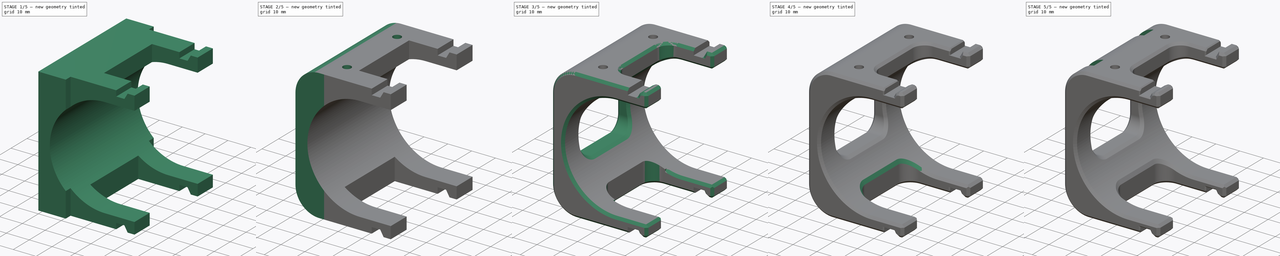
[diagram: build sequence overview — one tinted view per stage of 5, left to right]
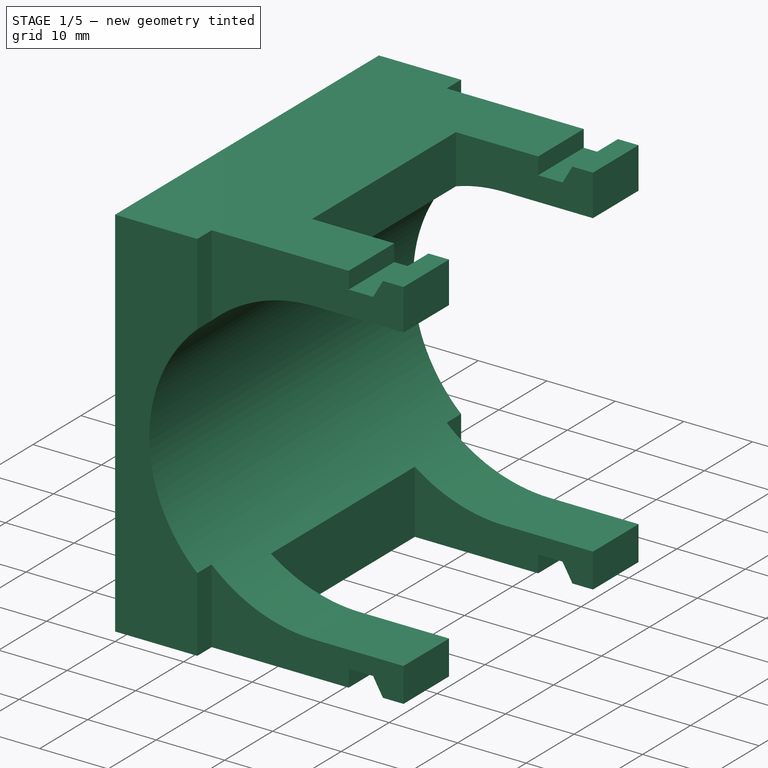
[diagram: stage 1 of 5 — iso view after this stage's code; geometry added in this stage tinted green]
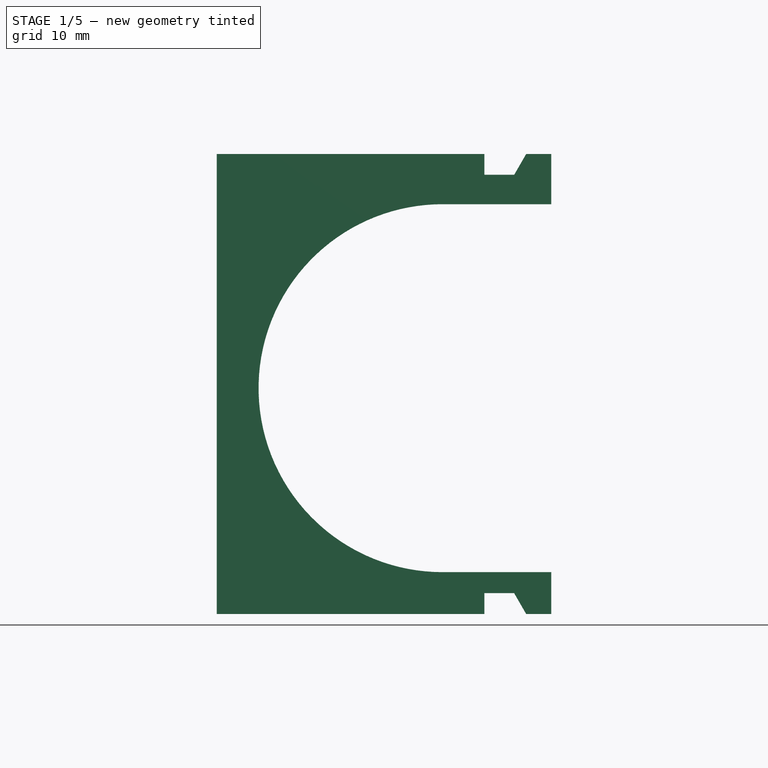
[diagram: stage 1 of 5 — front view after this stage's code; geometry added in this stage tinted green]
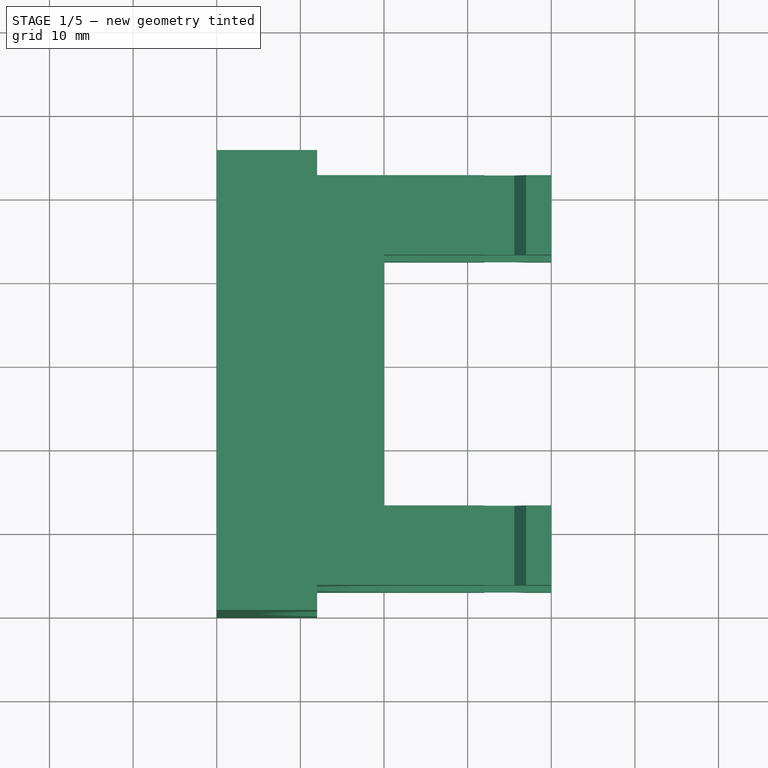
[diagram: stage 1 of 5 — top view after this stage's code; geometry added in this stage tinted green]
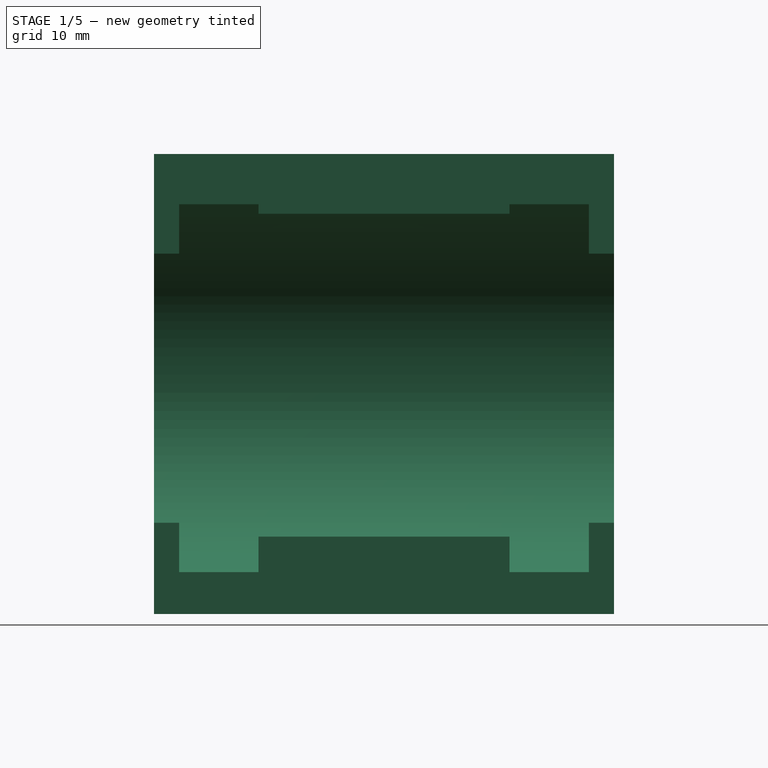
[diagram: stage 1 of 5 — right view after this stage's code; geometry added in this stage tinted green]
FCSTD DOCUMENT  (FreeCAD 0.20R29603 (Git))
Label: pump-mount
License: All rights reserved
LicenseURL: http://en.wikipedia.org/wiki/All_rights_reserved
objects: Sketcher::SketchObject×12, PartDesign::Pocket×8, PartDesign::Chamfer×6, PartDesign::Pad×3, PartDesign::Plane×3, PartDesign::Fillet×3, PartDesign::Hole×1, PartDesign::Body×1
note: 58 computed .brp shape members not serialized (recipe doc carries the construction recipe); baked Part::Feature solids carry a one-line shape summary decoded from their .brp

FEATURE [Sketcher::SketchObject] Sketch
  FullyConstrained = true
  MapMode = 5
  Support = -> [XY_Plane]
  sketch-geometry (4):
    g0: LineSegment StartX=0 StartY=55 StartZ=0 EndX=40 EndY=55 EndZ=0
    g1: LineSegment StartX=40 StartY=55 StartZ=0 EndX=40 EndY=0 EndZ=0
    g2: LineSegment StartX=40 StartY=0 StartZ=0 EndX=0 EndY=0 EndZ=0
    g3: LineSegment StartX=0 StartY=0 StartZ=0 EndX=0 EndY=55 EndZ=0
  constraints (11):
    c: Coincident(g0,g1)
    c: Coincident(g1,g2)
    c: Coincident(g2,g3)
    c: Coincident(g3,g0)
    c: Horizontal(g0)
    c: Horizontal(g2)
    c: Vertical(g1)
    c: Vertical(g3)
    c: DistanceX(g0,g0) = 40
    c: DistanceY(g1,g1) = 55
    c: Coincident(g2,g-1)
FEATURE [PartDesign::Pad] Pad
  Direction = (1,1,1)
  Length = 55
  Length2 = 100
  Profile = -> Sketch
  Type = 0
FEATURE [Sketcher::SketchObject] Sketch001
  FullyConstrained = true
  MapMode = 5
  Placement = pos=(0,0,0) rot=(1,0,0;1.5708rad)
  Support = -> [XZ_Plane]
  sketch-geometry (12):
    g0: LineSegment StartX=27 StartY=49 StartZ=0 EndX=45 EndY=49 EndZ=0
    g1: LineSegment StartX=45 StartY=49 StartZ=0 EndX=45 EndY=5 EndZ=0
    g2: LineSegment StartX=45 StartY=5 StartZ=0 EndX=27 EndY=5 EndZ=0
    g3: ArcOfCircle CenterX=27 CenterY=27 CenterZ=0 NormalX=0 NormalY=0 NormalZ=1 AngleXU=0 Radius=22 StartAngle=1.5708 EndAngle=4.71239
    g4: LineSegment StartX=32 StartY=55 StartZ=0 EndX=37 EndY=55 EndZ=0
    g5: LineSegment StartX=37 StartY=55 StartZ=0 EndX=35.57 EndY=52.5232 EndZ=0
    g6: LineSegment StartX=35.57 StartY=52.5232 StartZ=0 EndX=32 EndY=52.5232 EndZ=0
    g7: LineSegment StartX=32 StartY=52.5232 StartZ=0 EndX=32 EndY=55 EndZ=0
    g8: LineSegment StartX=32 StartY=2.5 StartZ=0 EndX=35.5566 EndY=2.5 EndZ=0
    g9: LineSegment StartX=35.5566 StartY=2.5 StartZ=0 EndX=37 EndY=0 EndZ=0
    g10: LineSegment StartX=37 StartY=0 StartZ=0 EndX=32 EndY=0 EndZ=0
    g11: LineSegment StartX=32 StartY=0 StartZ=0 EndX=32 EndY=2.5 EndZ=0
  constraints (37):
    c: Horizontal(g0)
    c: Coincident(g1,g0)
    c: Vertical(g1)
    c: Coincident(g2,g1)
    c: Horizontal(g2)
    c: Coincident(g3,g0)
    c: Coincident(g3,g2)
    c: Vertical(g0,g2)
    c: Vertical(g3,g0)
    c: DistanceY(g1,g1) = 44
    c: DistanceY(g-1,g1) = 5
    c: DistanceX(g-1,g1) = 45
    c: DistanceX(g0,g0) = 18
    c: Coincident(g4,g5)
    c: Coincident(g5,g6)
    c: Coincident(g6,g7)
    c: Coincident(g7,g4)
    c: Horizontal(g4)
    c: Horizontal(g6)
    c: Vertical(g7)
    c: Coincident(g8,g9)
    c: Coincident(g9,g10)
    c: Coincident(g10,g11)
    c: Coincident(g11,g8)
    c: Horizontal(g8)
    c: Horizontal(g10)
    c: Vertical(g11)
    c: Vertical(g6,g8)
    c: Equal(g4,g10)
    c: DistanceX(g10,g10) = 5
    c: Horizontal(g10,g-1)
    c: DistanceY(g9,g9) = 2.5
    c: DistanceY(g-1,g4) = 55
    c: Angle(g4,g5) = 1.0472
    c: Angle(g9,g10) = 1.0472
    c: DistanceX(g6,g6) = 3.57
    c: DistanceX(g-1,g10) = 32
FEATURE [PartDesign::Pocket] Pocket
  BaseFeature = -> Pad
  Direction = (1,1,1)
  Length = 5
  Length2 = 100
  Profile = -> Sketch001
  Type = 1
FEATURE [Sketcher::SketchObject] Sketch002
  FullyConstrained = true
  MapMode = 5
  Support = -> [XY_Plane]
  sketch-geometry (13):
    g0: LineSegment StartX=49 StartY=55 StartZ=0 EndX=14 EndY=55 EndZ=0
    g1: LineSegment StartX=14 StartY=55 StartZ=0 EndX=14 EndY=52 EndZ=0
    g2: LineSegment StartX=14 StartY=52 StartZ=0 EndX=49 EndY=52 EndZ=0
    g3: LineSegment StartX=49 StartY=52 StartZ=0 EndX=49 EndY=55 EndZ=0
    g4: LineSegment StartX=49 StartY=42.5 StartZ=0 EndX=14 EndY=42.5 EndZ=0
    g5: LineSegment StartX=14 StartY=42.5 StartZ=0 EndX=14 EndY=12.5 EndZ=0
    g6: LineSegment StartX=14 StartY=12.5 StartZ=0 EndX=49 EndY=12.5 EndZ=0
    g7: LineSegment StartX=49 StartY=12.5 StartZ=0 EndX=49 EndY=42.5 EndZ=0
    g8: LineSegment StartX=49 StartY=3 StartZ=0 EndX=14 EndY=3 EndZ=0
    g9: LineSegment StartX=14 StartY=3 StartZ=0 EndX=14 EndY=0 EndZ=0
    g10: LineSegment StartX=14 StartY=0 StartZ=0 EndX=49 EndY=0 EndZ=0
    g11: LineSegment StartX=49 StartY=0 StartZ=0 EndX=49 EndY=3 EndZ=0
    g12: LineSegment StartX=0 StartY=27.5 StartZ=0 EndX=75 EndY=27.5 EndZ=0
  constraints (39):
    c: Coincident(g0,g1)
    c: Coincident(g1,g2)
    c: Coincident(g2,g3)
    c: Coincident(g3,g0)
    c: Horizontal(g0)
    c: Horizontal(g2)
    c: Vertical(g1)
    c: Vertical(g3)
    c: Coincident(g4,g5)
    c: Coincident(g5,g6)
    c: Coincident(g6,g7)
    c: Coincident(g7,g4)
    c: Horizontal(g4)
    c: Vertical(g5)
    c: Vertical(g7)
    c: Coincident(g8,g9)
    c: Coincident(g9,g10)
    c: Coincident(g10,g11)
    c: Coincident(g11,g8)
    c: Horizontal(g8)
    c: Horizontal(g10)
    c: Vertical(g9)
    c: Vertical(g11)
    c: Vertical(g9,g5)
    c: Vertical(g5,g1)
    c: Vertical(g8,g6)
    c: Vertical(g6,g2)
    c: Equal(g11,g3)
    c: Equal(g8,g6)
    c: DistanceY(g11,g11) = 3
    c: DistanceY(g-1,g0) = 55
    c: DistanceY(g9,g-1) = 0
    c: DistanceX(g6,g6) = 35
    c: PointOnObject(g12,g-2)
    c: DistanceY(g-1,g12) = 27.5
    c: DistanceX(g12,g12) = 75
    c: Symmetric(g5,g4,g12)
    c: DistanceY(g7,g7) = 30
    c: DistanceX(g-1,g8) = 14
FEATURE [PartDesign::Pocket] Pocket001
  BaseFeature = -> Pocket
  Direction = (1,1,1)
  Length = 25
  Length2 = 100
  Profile = -> Sketch002
  Reversed = true
  Type = 0
FEATURE [Sketcher::SketchObject] Sketch003
  FullyConstrained = true
  MapMode = 5
  Support = -> [XY_Plane]
  sketch-geometry (13):
    g0: LineSegment StartX=55 StartY=55 StartZ=0 EndX=12 EndY=55 EndZ=0
    g1: LineSegment StartX=12 StartY=55 StartZ=0 EndX=12 EndY=52 EndZ=0
    g2: LineSegment StartX=12 StartY=52 StartZ=0 EndX=55 EndY=52 EndZ=0
    g3: LineSegment StartX=55 StartY=52 StartZ=0 EndX=55 EndY=55 EndZ=0
    g4: LineSegment StartX=55 StartY=42.5 StartZ=0 EndX=20 EndY=42.5 EndZ=0
    g5: LineSegment StartX=20 StartY=42.5 StartZ=0 EndX=20 EndY=12.5 EndZ=0
    g6: LineSegment StartX=20 StartY=12.5 StartZ=0 EndX=55 EndY=12.5 EndZ=0
    g7: LineSegment StartX=55 StartY=12.5 StartZ=0 EndX=55 EndY=42.5 EndZ=0
    g8: LineSegment StartX=55 StartY=3 StartZ=0 EndX=12 EndY=3 EndZ=0
    g9: LineSegment StartX=12 StartY=3 StartZ=0 EndX=12 EndY=0 EndZ=0
    g10: LineSegment StartX=12 StartY=0 StartZ=0 EndX=55 EndY=0 EndZ=0
    g11: LineSegment StartX=55 StartY=0 StartZ=0 EndX=55 EndY=3 EndZ=0
    g12: LineSegment StartX=0 StartY=27.5 StartZ=0 EndX=100 EndY=27.5 EndZ=0
  constraints (39):
    c: Coincident(g0,g1)
    c: Coincident(g1,g2)
    c: Coincident(g2,g3)
    c: Coincident(g3,g0)
    c: Horizontal(g0)
    c: Horizontal(g2)
    c: Vertical(g1)
    c: Vertical(g3)
    c: Coincident(g4,g5)
    c: Coincident(g5,g6)
    c: Coincident(g6,g7)
    c: Coincident(g7,g4)
    c: Horizontal(g4)
    c: Vertical(g5)
    c: Vertical(g7)
    c: Coincident(g8,g9)
    c: Coincident(g9,g10)
    c: Coincident(g10,g11)
    c: Coincident(g11,g8)
    c: Horizontal(g8)
    c: Horizontal(g10)
    c: Vertical(g9)
    c: Vertical(g11)
    c: Vertical(g8,g6)
    c: Vertical(g6,g2)
    c: DistanceY(g11,g11) = 3
    c: DistanceY(g-1,g0) = 55
    c: DistanceY(g9,g-1) = 0
    c: DistanceX(g6,g6) = 35
    c: PointOnObject(g12,g-2)
    c: DistanceY(g-1,g12) = 27.5
    c: DistanceX(g12,g12) = 100
    c: Symmetric(g5,g4,g12)
    c: DistanceY(g7,g7) = 30
    c: DistanceX(g-1,g5) = 20
    c: DistanceX(g-1,g0) = 12
    c: Vertical(g9,g1)
    c: Equal(g11,g3)
    c: Equal(g7,g5)
FEATURE [PartDesign::Pocket] Pocket002
  BaseFeature = -> Pocket001
  Direction = (1,1,1)
  Length = 5
  Length2 = 100
  Profile = -> Sketch003
  Reversed = true
  Type = 1
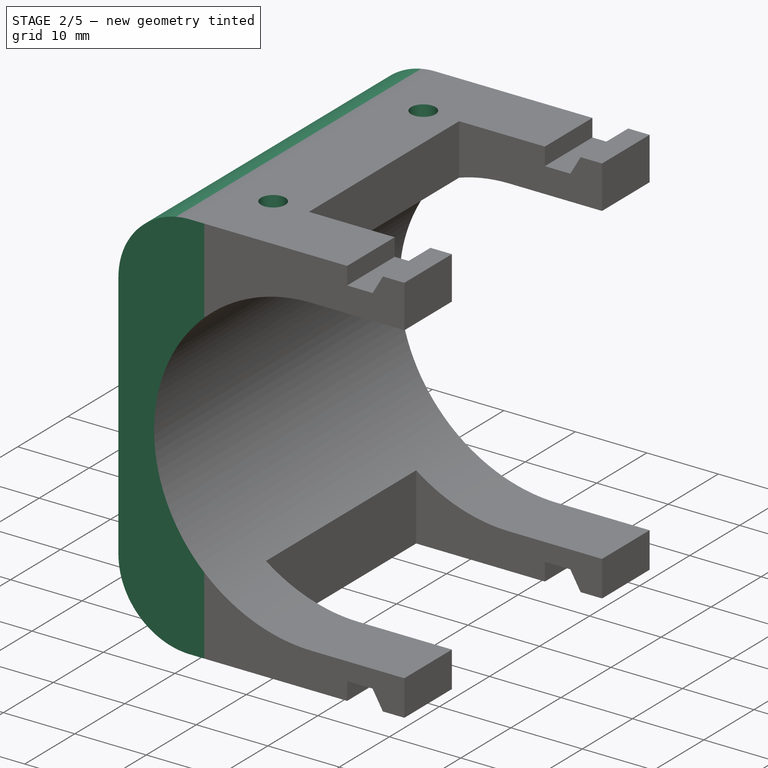
[diagram: stage 2 of 5 — iso view after this stage's code; geometry added in this stage tinted green]
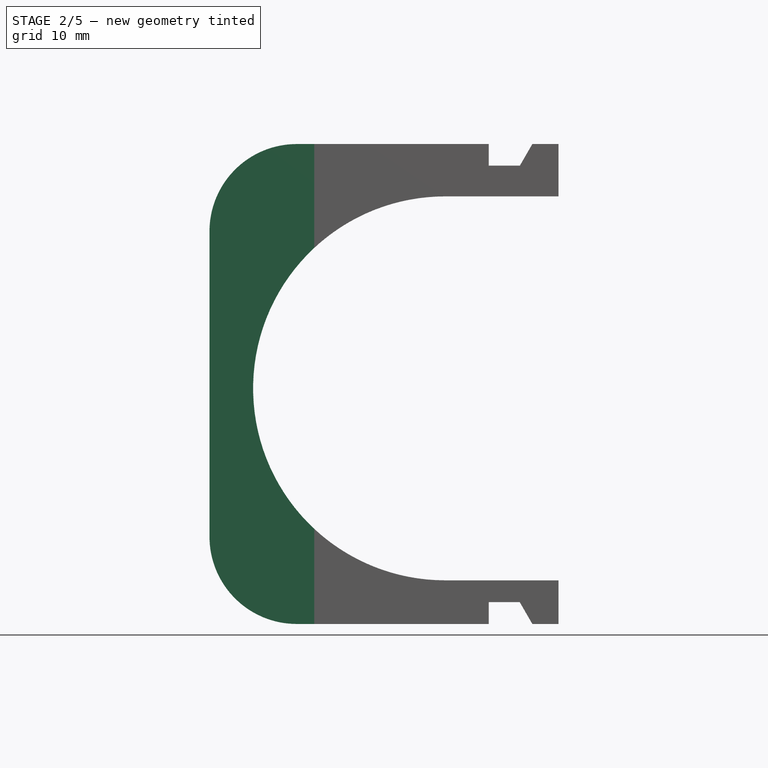
[diagram: stage 2 of 5 — front view after this stage's code; geometry added in this stage tinted green]
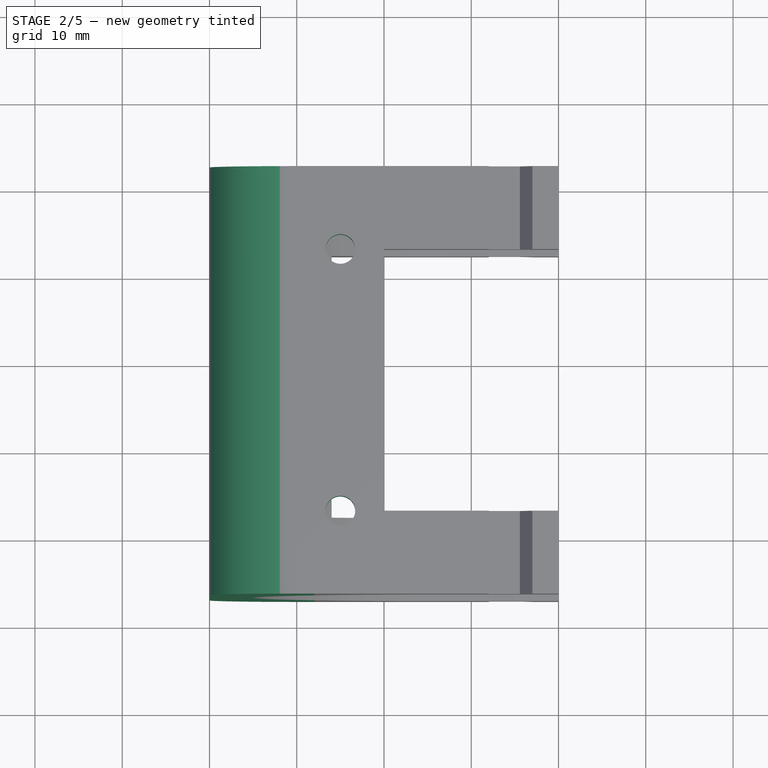
[diagram: stage 2 of 5 — top view after this stage's code; geometry added in this stage tinted green]
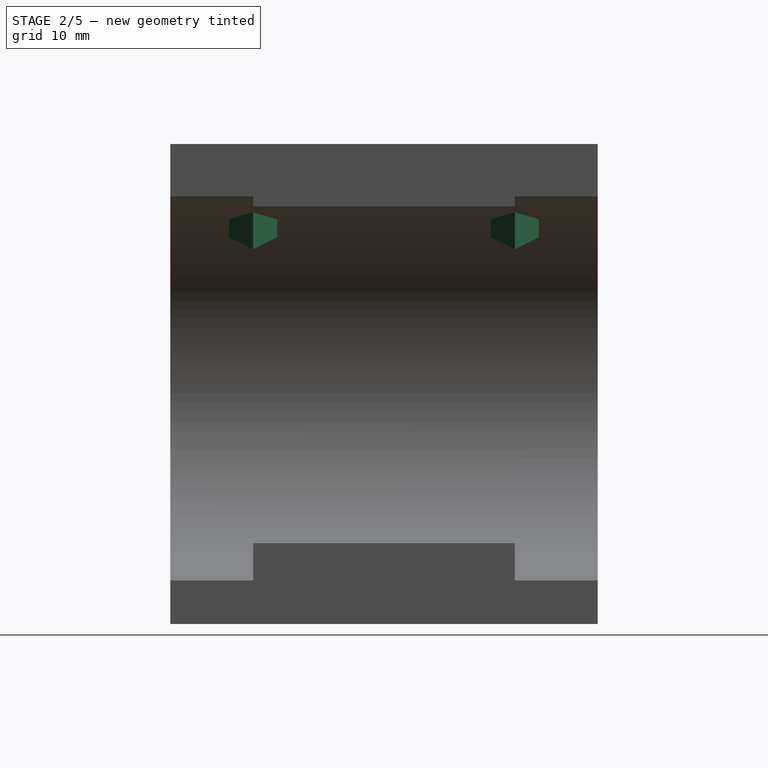
[diagram: stage 2 of 5 — right view after this stage's code; geometry added in this stage tinted green]
FEATURE [PartDesign::Plane] DatumPlane
  Length = 79.1492
  MapMode = 5
  Placement = pos=(0,0,55) rot=(0,0,1;0rad)
  ResizeMode = 0
  Support = -> [Pocket001]
  Width = 91.1492
FEATURE [Sketcher::SketchObject] Sketch004
  FullyConstrained = true
  MapMode = 5
  Placement = pos=(0,0,55) rot=(0,0,1;0rad)
  Support = -> [DatumPlane]
  sketch-geometry (2):
    g0: Circle CenterX=15 CenterY=42.5 CenterZ=0 NormalX=0 NormalY=0 NormalZ=1 AngleXU=0 Radius=1.75
    g1: Circle CenterX=15 CenterY=12.5 CenterZ=0 NormalX=0 NormalY=0 NormalZ=1 AngleXU=0 Radius=1.75
  constraints (6):
    c: Vertical(g0,g1)
    c: Diameter(g1) = 3.5
    c: Equal(g1,g0)
    c: DistanceY(g1,g0) = 30
    c: DistanceY(g-1,g1) = 12.5
    c: DistanceX(g-1,g1) = 15
FEATURE [PartDesign::Hole] Hole
  BaseFeature = -> Pocket002
  CustomThreadClearance = 0
  Depth = 25
  DepthType = 0
  Diameter = 3.4
  DrillForDepth = false
  DrillPoint = 1
  DrillPointAngle = 118
  HoleCutCountersinkAngle = 90
  HoleCutCustomValues = false
  HoleCutDepth = 0
  HoleCutDiameter = 6.1
  HoleCutType = 0
  ModelThread = false
  Profile = -> Sketch004
  Tapered = false
  TaperedAngle = 90
  ThreadClass = 0
  ThreadDepth = 23.5
  ThreadDepthType = 0
  ThreadDirection = 0
  ThreadFit = 0
  ThreadSize = 9
  ThreadType = 1
  Threaded = false
  UseCustomThreadClearance = false
FEATURE [Sketcher::SketchObject] Sketch005  label="M3NutHoles"
  AttachmentOffset = pos=(0,0,-5) rot=(0,0,1;0rad)
  FullyConstrained = true
  MapMode = 5
  Placement = pos=(0,0,50) rot=(0,0,1;0rad)
  Support = -> [DatumPlane]
  sketch-geometry (14):
    g0: LineSegment StartX=16.5877 StartY=9.75 StartZ=0 EndX=18.1754 EndY=12.5 EndZ=0
    g1: LineSegment StartX=18.1754 StartY=12.5 StartZ=0 EndX=16.5877 EndY=15.25 EndZ=0
    g2: LineSegment StartX=16.5877 StartY=15.25 StartZ=0 EndX=13.4123 EndY=15.25 EndZ=0
    g3: LineSegment StartX=13.4123 StartY=15.25 StartZ=0 EndX=11.8246 EndY=12.5 EndZ=0
    g4: LineSegment StartX=11.8246 StartY=12.5 StartZ=0 EndX=13.4123 EndY=9.75 EndZ=0
    g5: LineSegment StartX=13.4123 StartY=9.75 StartZ=0 EndX=16.5877 EndY=9.75 EndZ=0
    g6: Circle CenterX=15 CenterY=12.5 CenterZ=0 NormalX=0 NormalY=0 NormalZ=1 AngleXU=0 Radius=3.17543
    g7: LineSegment StartX=16.5877 StartY=39.75 StartZ=0 EndX=18.1754 EndY=42.5 EndZ=0
    g8: LineSegment StartX=18.1754 StartY=42.5 StartZ=0 EndX=16.5877 EndY=45.25 EndZ=0
    g9: LineSegment StartX=16.5877 StartY=45.25 StartZ=0 EndX=13.4123 EndY=45.25 EndZ=0
    g10: LineSegment StartX=13.4123 StartY=45.25 StartZ=0 EndX=11.8246 EndY=42.5 EndZ=0
    g11: LineSegment StartX=11.8246 StartY=42.5 StartZ=0 EndX=13.4123 EndY=39.75 EndZ=0
    g12: LineSegment StartX=13.4123 StartY=39.75 StartZ=0 EndX=16.5877 EndY=39.75 EndZ=0
    g13: Circle CenterX=15 CenterY=42.5 CenterZ=0 NormalX=0 NormalY=0 NormalZ=1 AngleXU=0 Radius=3.17543
  constraints (34):
    c: Coincident(g0,g1)
    c: Coincident(g1,g2)
    c: Coincident(g2,g3)
    c: Coincident(g3,g4)
    c: Coincident(g4,g5)
    c: Coincident(g5,g0)
    c: Equal(g0, g1-g5) x5
    c: PointOnObject(g0,g6)
    c: PointOnObject(g1,g6)
    c: PointOnObject(g2,g6)
    c: PointOnObject(g3,g6)
    c: PointOnObject(g4,g6)
    c: PointOnObject(g5,g6)
    c: Coincident(g7,g8)
    c: Coincident(g8,g9)
    c: Coincident(g9,g10)
    c: Coincident(g10,g11)
    c: Coincident(g11,g12)
    c: Coincident(g12,g7)
    c: Equal(g7, g8-g12) x5
    c: PointOnObject(g7,g13)
    c: PointOnObject(g8,g13)
    c: PointOnObject(g9,g13)
    c: PointOnObject(g10,g13)
    c: PointOnObject(g11,g13)
    c: PointOnObject(g12,g13)
    c: Vertical(g6,g13)
    c: DistanceX(g-1,g6) = 15
    c: DistanceY(g6,g13) = 30
    c: Horizontal(g2,g1)
    c: Horizontal(g9,g8)
    c: DistanceY(g11,g9) = 5.5
    c: DistanceY(g4,g2) = 5.5
    c: DistanceY(g-1,g6) = 12.5
FEATURE [PartDesign::Pocket] Pocket003
  BaseFeature = -> Hole
  Direction = (1,1,1)
  Length = 15
  Length2 = 100
  Profile = -> Sketch005
  Type = 0
FEATURE [PartDesign::Plane] DatumPlane001  label="PrintPlane"
  Length = 92.6971
  MapMode = 5
  Placement = pos=(0,0,0) rot=(0.57735,-0.57735,-0.57735;2.0944rad)
  ResizeMode = 0
  Support = -> [Pocket003]
  Width = 95.6971
FEATURE [Sketcher::SketchObject] Sketch007  label="M3NutHolesInBack"
  AttachmentOffset = pos=(0,0,7) rot=(0,0,1;0rad)
  FullyConstrained = false
  MapMode = 5
  Placement = pos=(7,-1.6e-15,1.6e-15) rot=(0.57735,0.57735,0.57735;2.0944rad)
  Support = -> [YZ_Plane]
  sketch-geometry (15):
    g0: LineSegment StartX=14.0877 StartY=22.25 StartZ=0 EndX=15.6754 EndY=25 EndZ=0
    g1: LineSegment StartX=15.6754 StartY=25 StartZ=0 EndX=14.0877 EndY=27.75 EndZ=0
    g2: LineSegment StartX=14.0877 StartY=27.75 StartZ=0 EndX=10.9123 EndY=27.75 EndZ=0
    g3: LineSegment StartX=10.9123 StartY=27.75 StartZ=0 EndX=9.32457 EndY=25 EndZ=0
    g4: LineSegment StartX=9.32457 StartY=25 StartZ=0 EndX=10.9123 EndY=22.25 EndZ=0
    g5: LineSegment StartX=10.9123 StartY=22.25 StartZ=0 EndX=14.0877 EndY=22.25 EndZ=0
    g6: Circle CenterX=12.5 CenterY=25 CenterZ=0 NormalX=0 NormalY=0 NormalZ=1 AngleXU=0 Radius=3.17543
    g7: LineSegment StartX=44.0877 StartY=22.25 StartZ=0 EndX=45.6754 EndY=25 EndZ=0
    g8: LineSegment StartX=45.6754 StartY=25 StartZ=0 EndX=44.0877 EndY=27.75 EndZ=0
    g9: LineSegment StartX=44.0877 StartY=27.75 StartZ=0 EndX=40.9123 EndY=27.75 EndZ=0
    g10: LineSegment StartX=40.9123 StartY=27.75 StartZ=0 EndX=39.3246 EndY=25 EndZ=0
    g11: LineSegment StartX=39.3246 StartY=25 StartZ=0 EndX=40.9123 EndY=22.25 EndZ=0
    g12: LineSegment StartX=40.9123 StartY=22.25 StartZ=0 EndX=44.0877 EndY=22.25 EndZ=0
    g13: Circle CenterX=42.5 CenterY=25 CenterZ=0 NormalX=0 NormalY=0 NormalZ=1 AngleXU=0 Radius=3.17543
    g14: LineSegment StartX=27.5 StartY=0 StartZ=0 EndX=27.5 EndY=36.5804 EndZ=0
  constraints (36):
    c: Coincident(g0,g1)
    c: Coincident(g1,g2)
    c: Coincident(g2,g3)
    c: Coincident(g3,g4)
    c: Coincident(g4,g5)
    c: Coincident(g5,g0)
    c: Equal(g0, g1-g5) x5
    c: PointOnObject(g0,g6)
    c: PointOnObject(g1,g6)
    c: PointOnObject(g2,g6)
    c: PointOnObject(g3,g6)
    c: PointOnObject(g4,g6)
    c: PointOnObject(g5,g6)
    c: Coincident(g7,g8)
    c: Coincident(g8,g9)
    c: Coincident(g9,g10)
    c: Coincident(g10,g11)
    c: Coincident(g11,g12)
    c: Coincident(g12,g7)
    c: Equal(g7, g8-g12) x5
    c: PointOnObject(g7,g13)
    c: PointOnObject(g8,g13)
    c: PointOnObject(g9,g13)
    c: PointOnObject(g10,g13)
    c: PointOnObject(g11,g13)
    c: PointOnObject(g12,g13)
    c: Horizontal(g2)
    c: Horizontal(g9)
    c: Distance(g3,g1) = 5.5
    c: Equal(g6,g13)
    c: DistanceX(g6,g13) = 30
    c: PointOnObject(g14,g-1)
    c: Vertical(g14)
    c: DistanceX(g-1,g14) = 27.5
    c: Symmetric(g6,g13,g14)
    c: DistanceY(g-1,g6) = 25
FEATURE [Sketcher::SketchObject] Sketch008
  FullyConstrained = false
  MapMode = 5
  Placement = pos=(0,0,0) rot=(0.57735,-0.57735,-0.57735;2.0944rad)
  Support = -> [DatumPlane001]
  sketch-geometry (14):
    g0: LineSegment StartX=-12.5 StartY=0 StartZ=0 EndX=-42.5 EndY=0 EndZ=0
    g1: LineSegment StartX=-42.5 StartY=0 StartZ=0 EndX=-42.5 EndY=40 EndZ=0
    g2: LineSegment StartX=-42.5 StartY=40 StartZ=0 EndX=-12.5 EndY=40 EndZ=0
    g3: LineSegment StartX=-12.5 StartY=40 StartZ=0 EndX=-12.5 EndY=0 EndZ=0
    g4: GeomPoint X=-27.5 Y=-5.62242 Z=0
    g5: LineSegment StartX=-27.5 StartY=-5.62242 StartZ=0 EndX=-27.5 EndY=40 EndZ=0
    g6: LineSegment StartX=5.16772 StartY=-7.03151 StartZ=0 EndX=-3 EndY=-7.03151 EndZ=0
    g7: LineSegment StartX=-3 StartY=-7.03151 StartZ=0 EndX=-3 EndY=62.771 EndZ=0
    g8: LineSegment StartX=-3 StartY=62.771 StartZ=0 EndX=5.16772 EndY=62.771 EndZ=0
    g9: LineSegment StartX=5.16772 StartY=62.771 StartZ=0 EndX=5.16772 EndY=-7.03151 EndZ=0
    g10: LineSegment StartX=-58.7715 StartY=66.9886 StartZ=0 EndX=-52 EndY=66.9886 EndZ=0
    g11: LineSegment StartX=-52 StartY=66.9886 StartZ=0 EndX=-52 EndY=-6.60639 EndZ=0
    g12: LineSegment StartX=-52 StartY=-6.60639 StartZ=0 EndX=-58.7715 EndY=-6.60639 EndZ=0
    g13: LineSegment StartX=-58.7715 StartY=-6.60639 StartZ=0 EndX=-58.7715 EndY=66.9886 EndZ=0
  constraints (31):
    c: Coincident(g0,g1)
    c: Coincident(g1,g2)
    c: Coincident(g2,g3)
    c: Coincident(g3,g0)
    c: Horizontal(g0)
    c: Horizontal(g2)
    c: Vertical(g1)
    c: Vertical(g3)
    c: PointOnObject(g0,g-1)
    c: Vertical(g5)
    c: Symmetric(g2,g2,g5)
    c: Coincident(g4,g5)
    c: DistanceX(g2,g2) = 30
    c: DistanceY(g1,g1) = 40
    c: Coincident(g6,g7)
    c: Coincident(g7,g8)
    c: Coincident(g8,g9)
    c: Coincident(g9,g6)
    c: Horizontal(g6)
    c: Horizontal(g8)
    c: Vertical(g7)
    c: Vertical(g9)
    c: Coincident(g10,g11)
    c: Coincident(g11,g12)
    c: Coincident(g12,g13)
    c: Coincident(g13,g10)
    c: Horizontal(g10)
    c: Horizontal(g12)
    c: Vertical(g11)
    c: Vertical(g13)
    c: DistanceX(g4,g-1) = 27.5
FEATURE [PartDesign::Pocket] Pocket006
  BaseFeature = -> Pocket003
  Direction = (1,1,1)
  Length = 5
  Length2 = 100
  Profile = -> Sketch008
  Type = 1
FEATURE [PartDesign::Fillet] Fillet001
  Base = -> Pocket006 [Edge71,Edge16]
  BaseFeature = -> Pocket006
  Radius = 10
  SupportTransform = false
  UseAllEdges = false
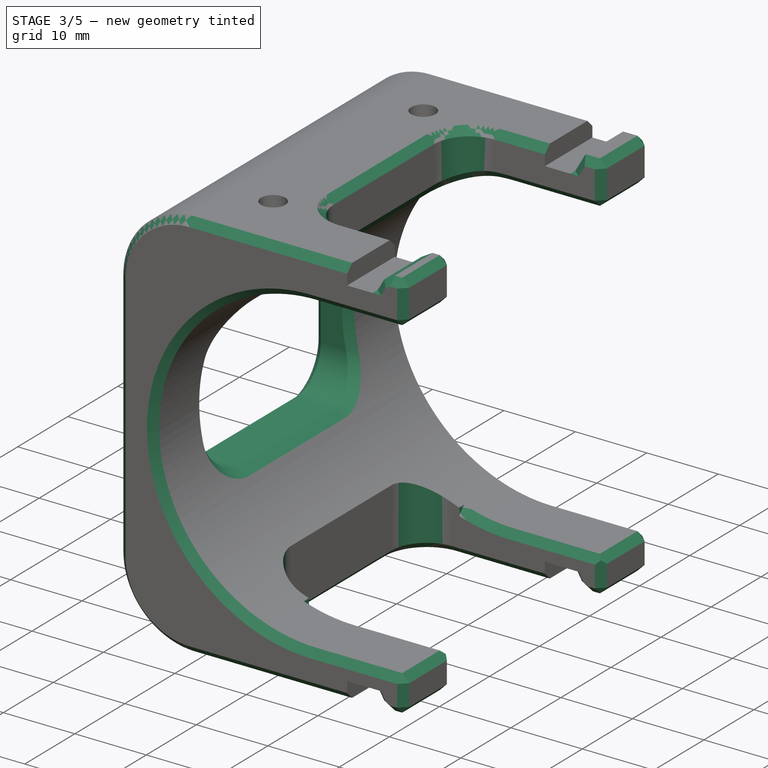
[diagram: stage 3 of 5 — iso view after this stage's code; geometry added in this stage tinted green]
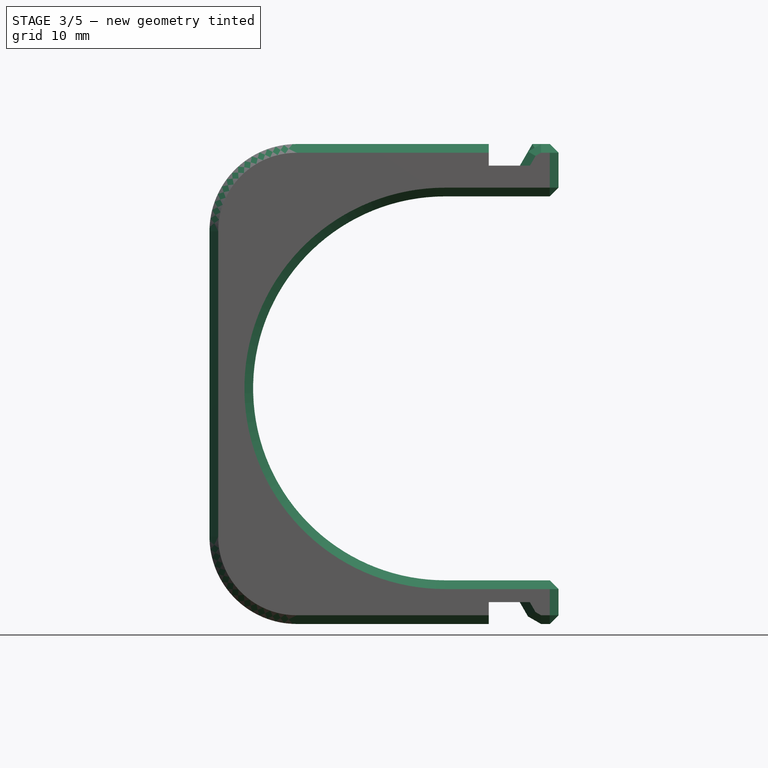
[diagram: stage 3 of 5 — front view after this stage's code; geometry added in this stage tinted green]
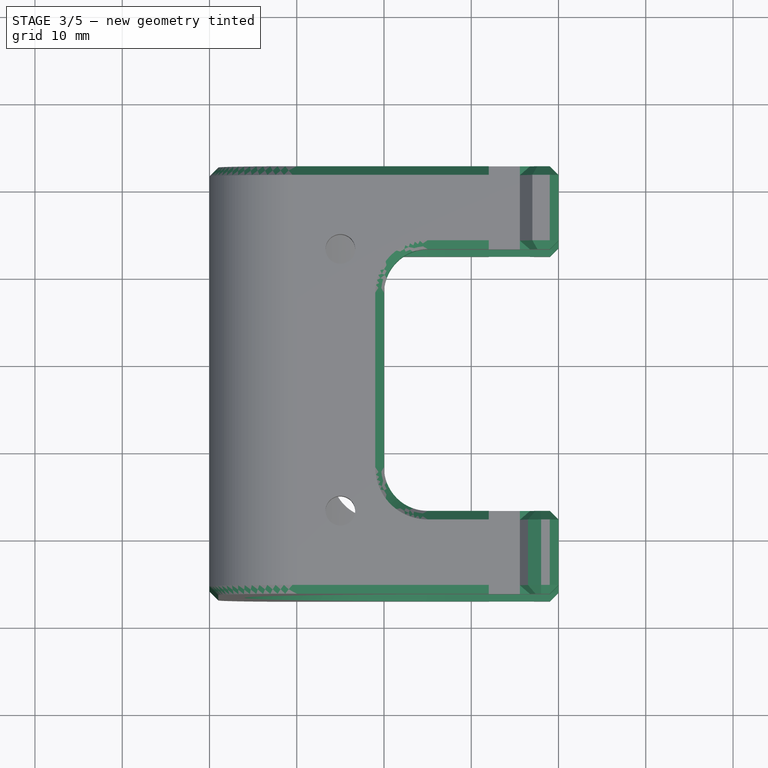
[diagram: stage 3 of 5 — top view after this stage's code; geometry added in this stage tinted green]
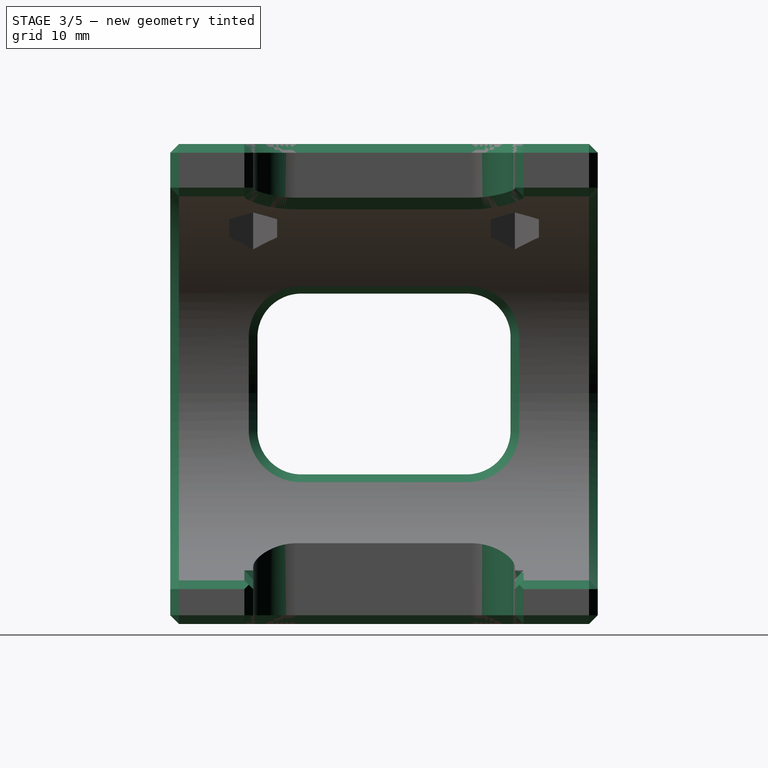
[diagram: stage 3 of 5 — right view after this stage's code; geometry added in this stage tinted green]
FEATURE [PartDesign::Fillet] Fillet
  Base = -> Fillet001 [Edge139,Edge142,Edge75,Edge70]
  BaseFeature = -> Fillet001
  Radius = 5
  SupportTransform = false
  UseAllEdges = false
FEATURE [Sketcher::SketchObject] Sketch009
  FullyConstrained = true
  MapMode = 5
  Placement = pos=(0,0,0) rot=(0.57735,-0.57735,-0.57735;2.0944rad)
  Support = -> [Fillet]
FEATURE [PartDesign::Plane] DatumPlane002
  Length = 92.6971
  MapMode = 5
  Placement = pos=(0,0,0) rot=(0.57735,-0.57735,-0.57735;2.0944rad)
  ResizeMode = 0
  Support = -> [Fillet]
  Width = 95.6971
FEATURE [Sketcher::SketchObject] Sketch010
  ExternalGeometry = -> [Fillet]
  FullyConstrained = true
  MapMode = 5
  Placement = pos=(0,0,0) rot=(0.57735,-0.57735,-0.57735;2.0944rad)
  Support = -> [DatumPlane002]
  sketch-geometry (6):
    g0: LineSegment StartX=-42 StartY=37.8571 StartZ=0 EndX=-13 EndY=37.8571 EndZ=0
    g1: LineSegment StartX=-13 StartY=37.8571 StartZ=0 EndX=-13 EndY=17.1429 EndZ=0
    g2: LineSegment StartX=-13 StartY=17.1429 StartZ=0 EndX=-42 EndY=17.1429 EndZ=0
    g3: LineSegment StartX=-42 StartY=17.1429 StartZ=0 EndX=-42 EndY=37.8571 EndZ=0
    g4: LineSegment StartX=-52 StartY=45 StartZ=0 EndX=-3 EndY=10 EndZ=0
    g5: GeomPoint X=-27.5 Y=27.5 Z=0
  constraints (14):
    c: Coincident(g0,g1)
    c: Coincident(g1,g2)
    c: Coincident(g2,g3)
    c: Coincident(g3,g0)
    c: Horizontal(g0)
    c: Horizontal(g2)
    c: Vertical(g1)
    c: Vertical(g3)
    c: Coincident(g4,g-3)
    c: Coincident(g4,g-4)
    c: PointOnObject(g0,g4)
    c: Symmetric(g4,g4,g5)
    c: Symmetric(g0,g1,g5)
    c: DistanceX(g4,g0) = 10
FEATURE [PartDesign::Pocket] Pocket007
  BaseFeature = -> Fillet
  Direction = (1,1,1)
  Length = 5
  Length2 = 100
  Profile = -> Sketch010
  Type = 1
FEATURE [PartDesign::Fillet] Fillet002
  Base = -> Pocket007 [Edge193,Edge195,Edge194,Edge192]
  BaseFeature = -> Pocket007
  Radius = 5
  SupportTransform = false
  UseAllEdges = false
FEATURE [PartDesign::Chamfer] Chamfer
  Angle = 45
  Base = -> Fillet002 [Edge21,Edge100,Edge28,Edge133,Edge112,Edge123,Edge70,Edge78,Edge107,Edge151,Edge122,Edge88,Edge113,Edge142,Edge120,Edge199,Edge195,Edge212,Edge211,Edge5,Edge58,Edge159,Edge143,Edge130,Edge154,Edge157,Edge144,Edge111,Edge132,Edge210,Edge158,Edge128,Edge99,Edge83,Edge194,Edge192,Edge94,Edge118,Edge196,Edge200,+4 more]
  BaseFeature = -> Fillet002
  ChamferType = 0
  FlipDirection = false
  Size = 1
  Size2 = 1
  SupportTransform = false
  UseAllEdges = false
FEATURE [PartDesign::Chamfer] Chamfer001
  Angle = 45
  Base = -> Chamfer [Edge3,Edge94]
  BaseFeature = -> Chamfer
  ChamferType = 0
  FlipDirection = false
  Size = 1
  Size2 = 1
  SupportTransform = false
  UseAllEdges = false
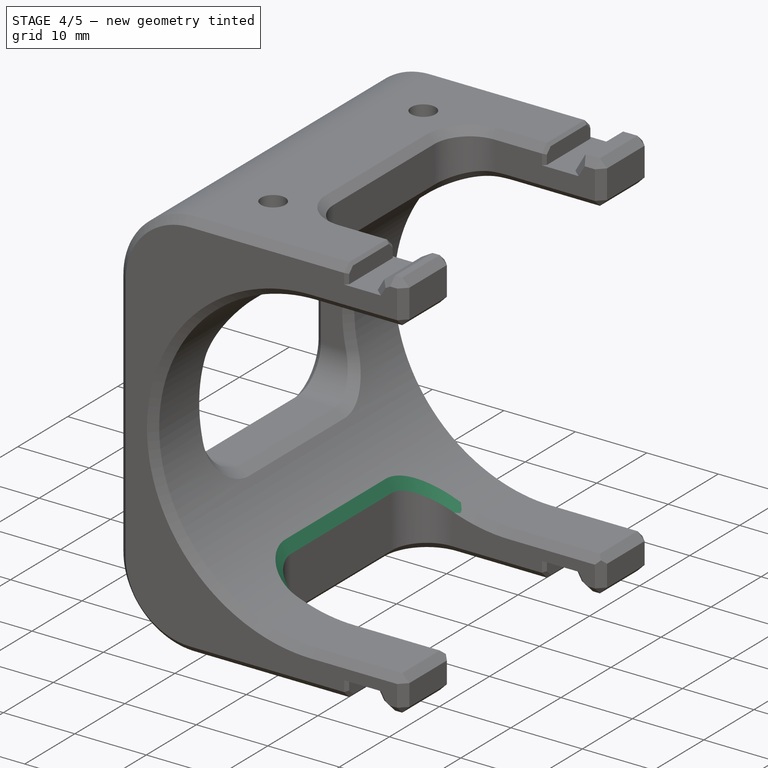
[diagram: stage 4 of 5 — iso view after this stage's code; geometry added in this stage tinted green]
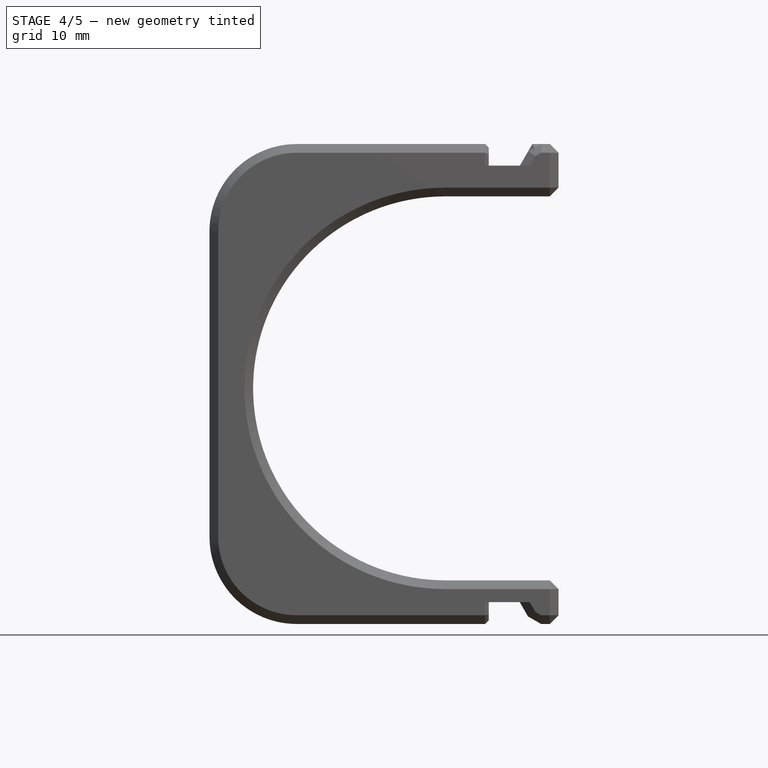
[diagram: stage 4 of 5 — front view after this stage's code; geometry added in this stage tinted green]
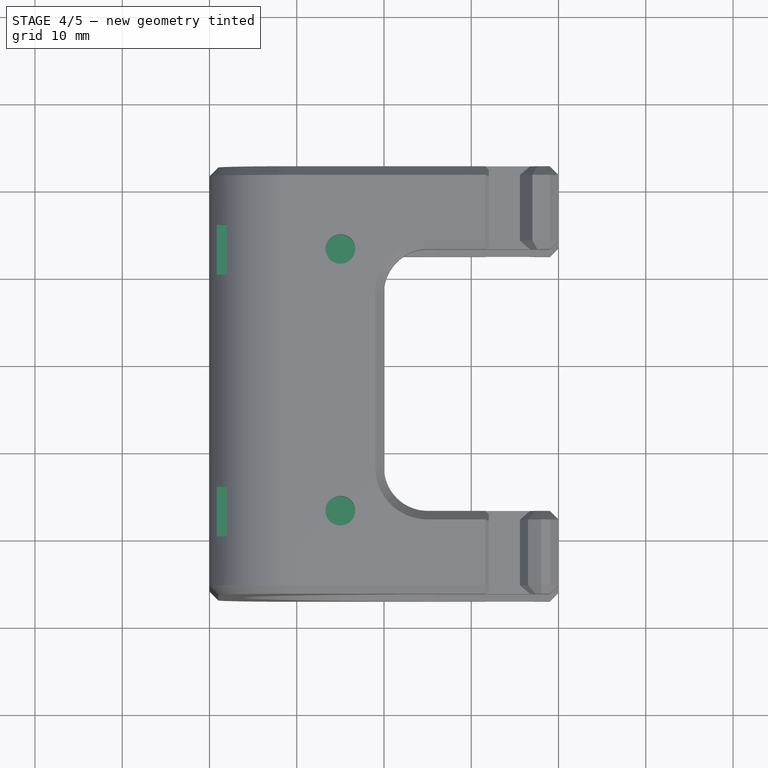
[diagram: stage 4 of 5 — top view after this stage's code; geometry added in this stage tinted green]
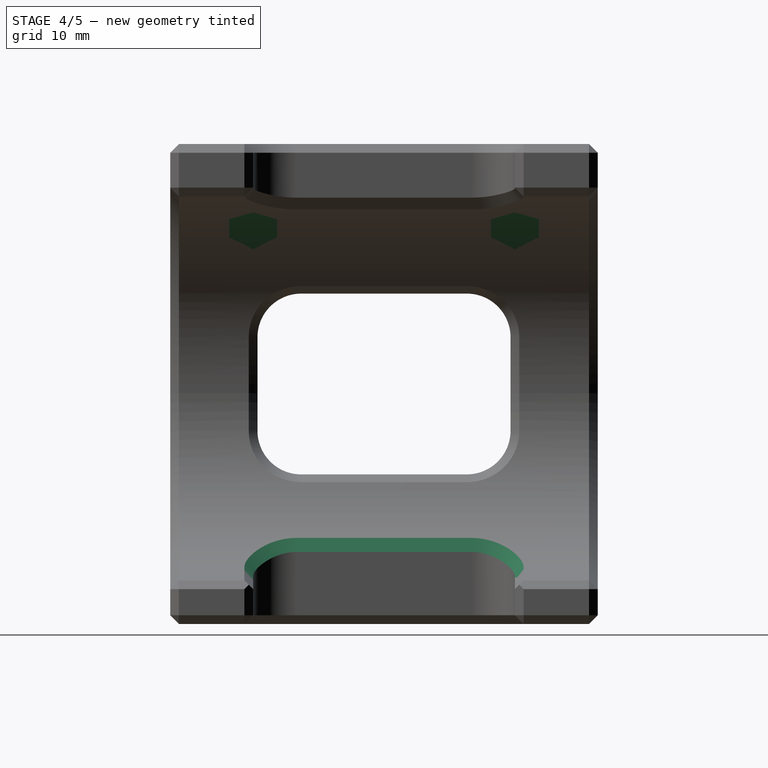
[diagram: stage 4 of 5 — right view after this stage's code; geometry added in this stage tinted green]
FEATURE [PartDesign::Chamfer] Chamfer002
  Angle = 45
  Base = -> Chamfer001 [Edge14]
  BaseFeature = -> Chamfer001
  ChamferType = 0
  FlipDirection = false
  Size = 1
  Size2 = 1
  SupportTransform = false
  UseAllEdges = false
FEATURE [PartDesign::Chamfer] Chamfer003
  Angle = 45
  Base = -> Chamfer002 [Edge356,Edge413,Edge296,Edge152,Edge173,Edge318,Edge222,Edge347,Edge253,Edge269,Edge233,Edge202,Edge411,Edge414,Edge354,Edge357,Edge376,Edge336,Edge160,Edge294]
  BaseFeature = -> Chamfer002
  ChamferType = 0
  FlipDirection = false
  Size = 0.4
  Size2 = 1
  SupportTransform = false
  UseAllEdges = false
FEATURE [PartDesign::Pad] Pad001
  BaseFeature = -> Chamfer003
  Direction = (0,0,1)
  Length = 10
  Length2 = 10
  Profile = -> Sketch005
  ReferenceAxis = -> Sketch005 [N_Axis]
  Reversed = true
  Type = 3
  UpToFace = -> Chamfer003 [Face17]
FEATURE [Sketcher::SketchObject] Sketch011
  ExternalGeometry = -> [Pad001]
  FullyConstrained = true
  MapMode = 5
  Placement = pos=(0,0,0) rot=(0.57735,-0.57735,-0.57735;2.0944rad)
  Support = -> [DatumPlane002]
  sketch-geometry (10):
    g0: LineSegment StartX=-45.35 StartY=49 StartZ=0 EndX=-45.35 EndY=51 EndZ=0
    g1: LineSegment StartX=-45.35 StartY=51 StartZ=0 EndX=-39.65 EndY=51 EndZ=0
    g2: LineSegment StartX=-39.65 StartY=51 StartZ=0 EndX=-39.65 EndY=49 EndZ=0
    g3: LineSegment StartX=-39.65 StartY=49 StartZ=0 EndX=-45.35 EndY=49 EndZ=0
    g4: GeomPoint X=-42.5 Y=50 Z=0
    g5: LineSegment StartX=-15.35 StartY=49 StartZ=0 EndX=-15.35 EndY=51 EndZ=0
    g6: LineSegment StartX=-15.35 StartY=51 StartZ=0 EndX=-9.65 EndY=51 EndZ=0
    g7: LineSegment StartX=-9.65 StartY=51 StartZ=0 EndX=-9.65 EndY=49 EndZ=0
    g8: LineSegment StartX=-9.65 StartY=49 StartZ=0 EndX=-15.35 EndY=49 EndZ=0
    g9: GeomPoint X=-12.5 Y=50 Z=0
  constraints (24):
    c: Coincident(g0,g1)
    c: Coincident(g1,g2)
    c: Coincident(g2,g3)
    c: Coincident(g3,g0)
    c: Horizontal(g1)
    c: Horizontal(g3)
    c: Vertical(g0)
    c: Vertical(g2)
    c: Symmetric(g1,g0,g4)
    c: Coincident(g5,g6)
    c: Coincident(g6,g7)
    c: Coincident(g7,g8)
    c: Coincident(g8,g5)
    c: Horizontal(g6)
    c: Horizontal(g8)
    c: Vertical(g5)
    c: Vertical(g7)
    c: Symmetric(g6,g5,g9)
    c: Equal(g5,g2)
    c: Equal(g1,g6)
    c: Symmetric(g-3,g-3,g4)
    c: Symmetric(g-4,g-4,g9)
    c: DistanceX(g1,g1) = 5.7
    c: DistanceY(g0,g0) = 2
FEATURE [PartDesign::Pocket] Pocket008
  BaseFeature = -> Pad001
  Direction = (1,0,0)
  Length = 17.775
  Length2 = 5
  Profile = -> Sketch011
  ReferenceAxis = -> Sketch011 [N_Axis]
  Type = 0
  expr: Length = 17.73 + 0.045
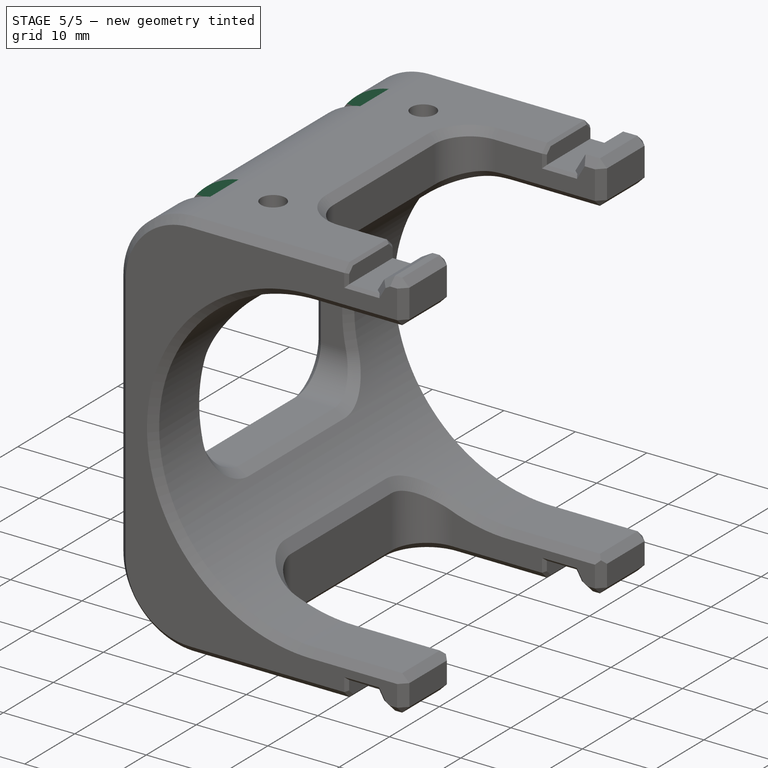
[diagram: stage 5 of 5 — iso view after this stage's code; geometry added in this stage tinted green]
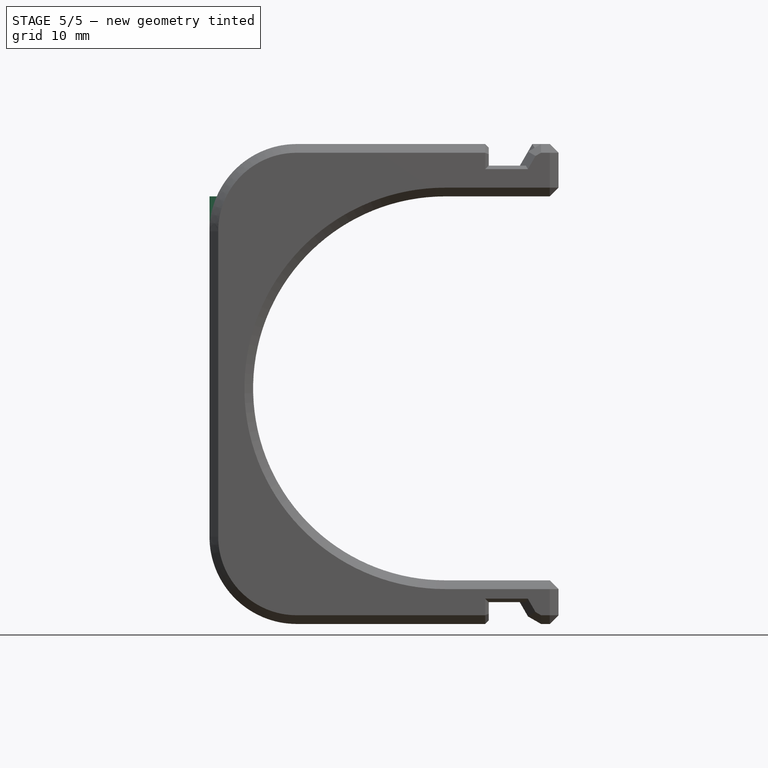
[diagram: stage 5 of 5 — front view after this stage's code; geometry added in this stage tinted green]
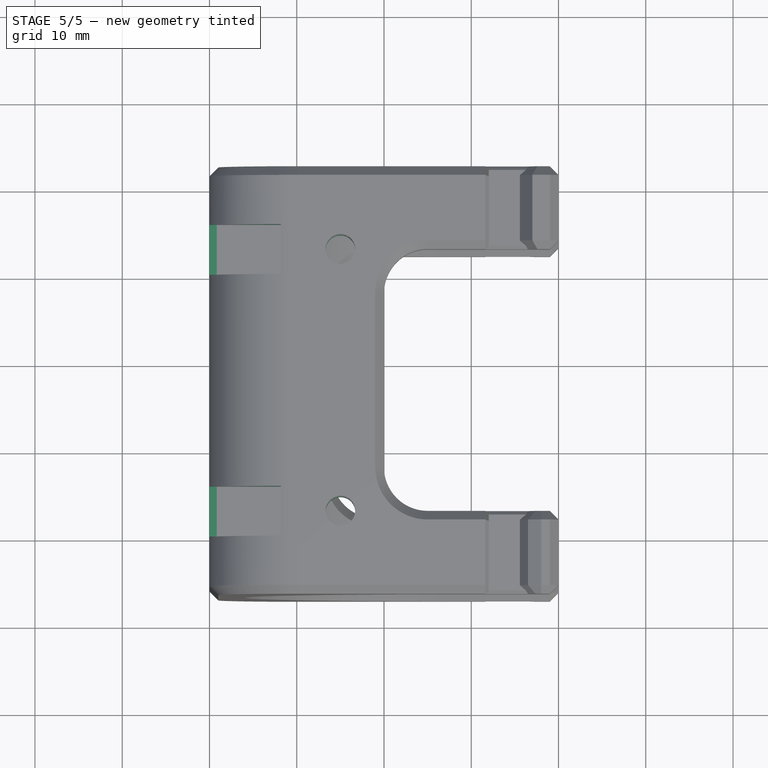
[diagram: stage 5 of 5 — top view after this stage's code; geometry added in this stage tinted green]
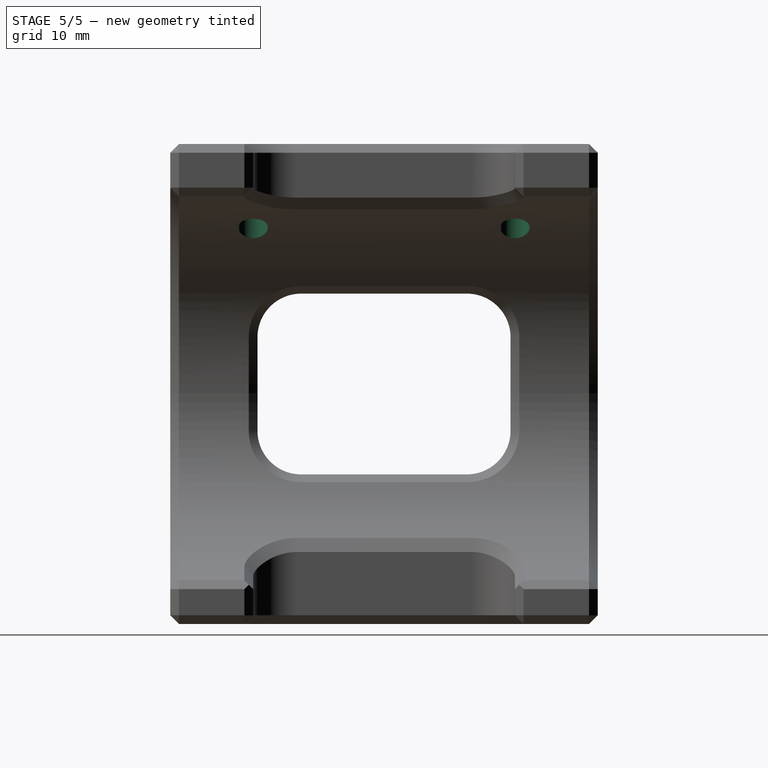
[diagram: stage 5 of 5 — right view after this stage's code; geometry added in this stage tinted green]
FEATURE [PartDesign::Chamfer] Chamfer004
  Angle = 45
  Base = -> Pocket008 [Edge335,Edge321,Edge351,Edge288,Edge251,Edge6,Edge28,Edge301]
  BaseFeature = -> Pocket008
  ChamferType = 0
  FlipDirection = false
  Size = 0.4
  Size2 = 1
  SupportTransform = false
  UseAllEdges = false
FEATURE [PartDesign::Chamfer] Chamfer005
  Angle = 45
  Base = -> Chamfer004 [Edge541,Edge537]
  BaseFeature = -> Chamfer004
  ChamferType = 2
  FlipDirection = true
  Size = 10
  Size2 = 1
  SupportTransform = false
  UseAllEdges = false
FEATURE [Sketcher::SketchObject] Sketch012
  ExternalGeometry = -> [Pad001,Chamfer005]
  FullyConstrained = false
  MapMode = 5
  Placement = pos=(0,0,0) rot=(0.57735,-0.57735,-0.57735;2.0944rad)
  Support = -> [DatumPlane002]
  sketch-geometry (10):
    g0: LineSegment StartX=-45.35 StartY=45 StartZ=0 EndX=-45.35 EndY=49 EndZ=0
    g1: LineSegment StartX=-45.35 StartY=49 StartZ=0 EndX=-39.65 EndY=49 EndZ=0
    g2: LineSegment StartX=-39.65 StartY=49 StartZ=0 EndX=-39.65 EndY=45 EndZ=0
    g3: LineSegment StartX=-39.65 StartY=45 StartZ=0 EndX=-45.35 EndY=45 EndZ=0
    g4: GeomPoint X=-42.8336 Y=49.2923 Z=0
    g5: LineSegment StartX=-15.35 StartY=45 StartZ=0 EndX=-15.35 EndY=49 EndZ=0
    g6: LineSegment StartX=-15.35 StartY=49 StartZ=0 EndX=-9.65 EndY=49 EndZ=0
    g7: LineSegment StartX=-9.65 StartY=49 StartZ=0 EndX=-9.65 EndY=45 EndZ=0
    g8: LineSegment StartX=-9.65 StartY=45 StartZ=0 EndX=-15.35 EndY=45 EndZ=0
    g9: GeomPoint X=-12.5 Y=47 Z=0
  constraints (23):
    c: Coincident(g0,g1)
    c: Coincident(g1,g2)
    c: Coincident(g2,g3)
    c: Coincident(g3,g0)
    c: Horizontal(g1)
    c: Horizontal(g3)
    c: Vertical(g0)
    c: Vertical(g2)
    c: Coincident(g5,g6)
    c: Coincident(g6,g7)
    c: Coincident(g7,g8)
    c: Coincident(g8,g5)
    c: Horizontal(g6)
    c: Horizontal(g8)
    c: Vertical(g5)
    c: Vertical(g7)
    c: Symmetric(g6,g5,g9)
    c: Equal(g5,g2)
    c: Equal(g1,g6)
    c: DistanceX(g1,g1) = 5.7
    c: DistanceY(g0,g0) = 4
    c: Coincident(g0,g-5)
    c: Coincident(g5,g-7)
FEATURE [PartDesign::Pad] Pad002
  BaseFeature = -> Chamfer005
  Direction = (-1,0,0)
  Length = 1
  Length2 = 10
  Profile = -> Sketch012
  ReferenceAxis = -> Sketch012 [N_Axis]
  Reversed = true
  Type = 0
FEATURE [PartDesign::Pocket] Pocket009  label="deepen m3 clearence holes"
  BaseFeature = -> Pad002
  Direction = (0,5e-16,-1)
  Length = 8
  Length2 = 5
  Profile = -> Pad002 [Edge144,Edge84]
  Type = 0
FEATURE [PartDesign::Body] Body
  Group = -> [Sketch,Pad,Sketch001,Pocket,Sketch002,Pocket001,Sketch003,Pocket002,DatumPlane,Sketch004,Hole,Sketch005,Pocket003,Sketch007,DatumPlane001,Sketch008,Pocket006,Fillet001,Fillet,Sketch009,DatumPlane002,Sketch010,Pocket007,Fillet002,Chamfer,Chamfer001,Chamfer002,Chamfer003,Pad001,Sketch011,Pocket008,Chamfer004,Chamfer005,Sketch012,Pad002,Pocket009]
  Origin = -> Origin
  Tip = -> Pocket009
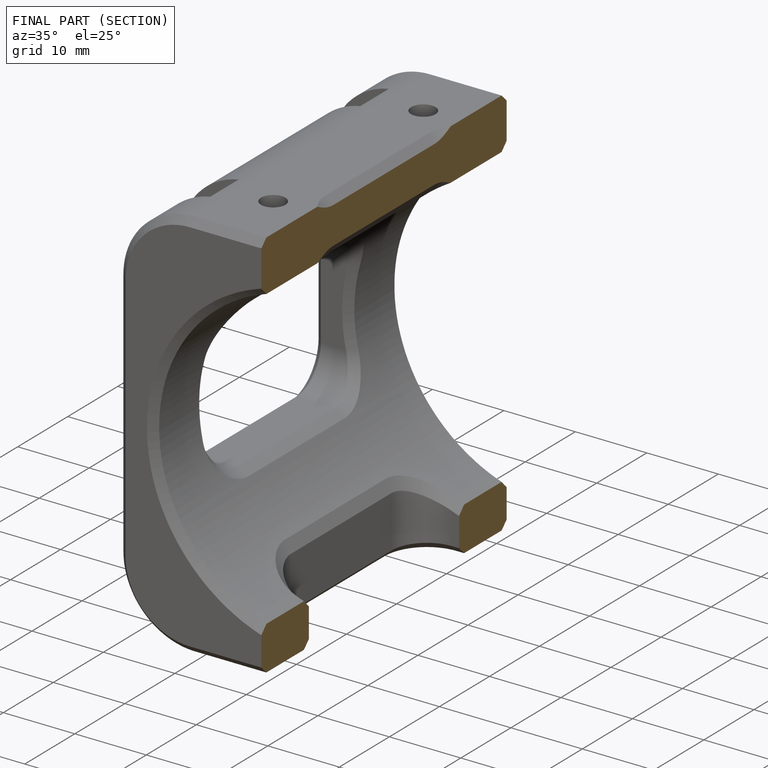
[diagram: finished part — half-section view (interior)]
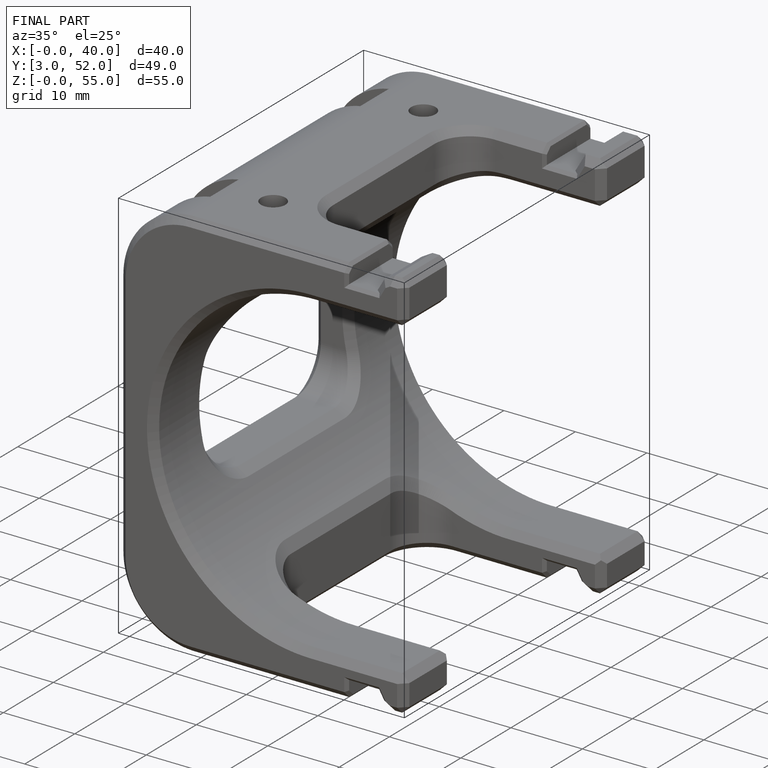
[diagram: finished part — iso view with bounding-box wireframe]
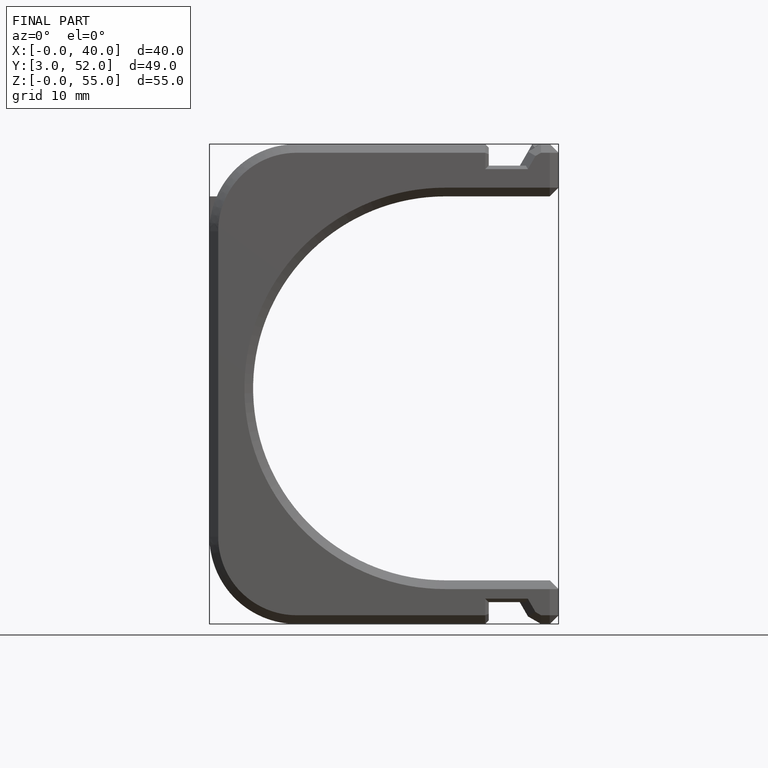
[diagram: finished part — front view with bounding-box wireframe]
